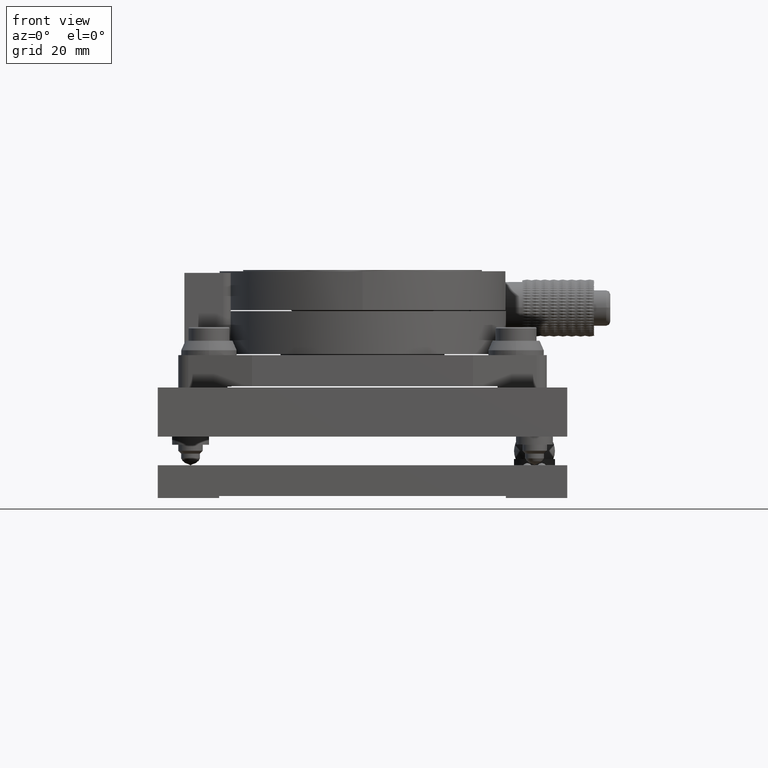
[diagram: clean part render]
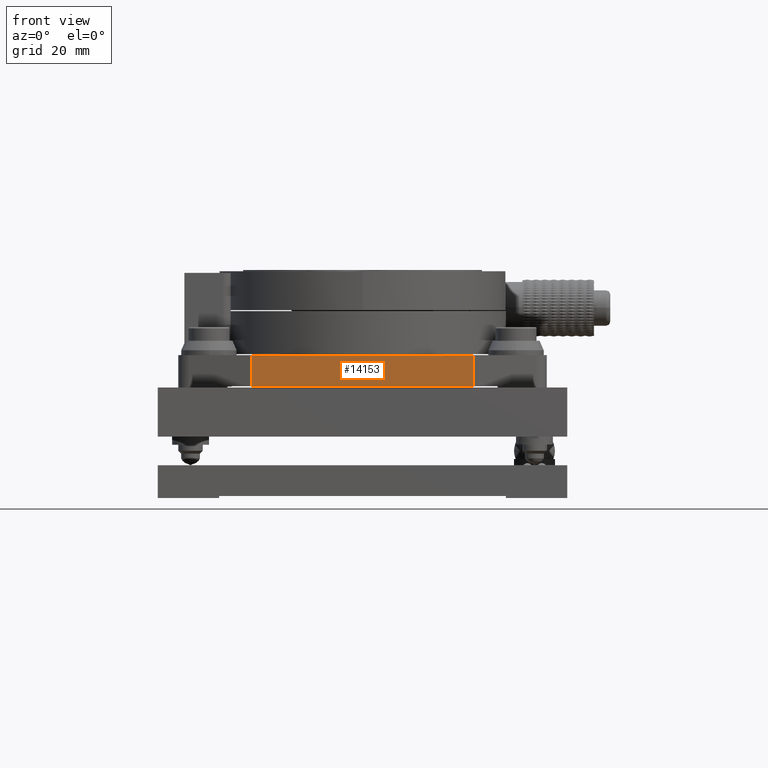
[diagram: same view with one face highlighted and labeled with its STEP entity id]
A machine part, front view. The second image highlights one B-rep face of the part: STEP entity #14153.
In plain terms, the highlighted planar face has unit normal (0, -1, 0).
Its self-contained STEP definition (entity closure, byte-faithful):
#14153=ADVANCED_FACE('',(#20178),#110171,.T.);
#20178=FACE_OUTER_BOUND('',#26693,.T.);
#26693=EDGE_LOOP('',(#59004,#59005,#59006,#59007));
#59004=ORIENTED_EDGE('',*,*,#76864,.T.);
#59005=ORIENTED_EDGE('',*,*,#77101,.T.);
#59006=ORIENTED_EDGE('',*,*,#77102,.T.);
#59007=ORIENTED_EDGE('',*,*,#77098,.F.);
#76864=EDGE_CURVE('',#104962,#104961,#92395,.T.);
#77098=EDGE_CURVE('',#104962,#105127,#92518,.T.);
#77101=EDGE_CURVE('',#104961,#105128,#92521,.T.);
#77102=EDGE_CURVE('',#105128,#105127,#92522,.T.);
#92395=B_SPLINE_CURVE_WITH_KNOTS('',1,(#188968,#188969),.UNSPECIFIED.,.F.,
 .F.,(2,2),(-54.,0.),.UNSPECIFIED.);
#92518=B_SPLINE_CURVE_WITH_KNOTS('',1,(#189621,#189622),.UNSPECIFIED.,.F.,
 .F.,(2,2),(0.,7.6),.UNSPECIFIED.);
#92521=B_SPLINE_CURVE_WITH_KNOTS('',1,(#189627,#189628),.UNSPECIFIED.,.F.,
 .F.,(2,2),(0.,7.6),.UNSPECIFIED.);
#92522=B_SPLINE_CURVE_WITH_KNOTS('',1,(#189629,#189630),.UNSPECIFIED.,.F.,
 .F.,(2,2),(0.,54.),.UNSPECIFIED.);
#104961=VERTEX_POINT('',#188240);
#104962=VERTEX_POINT('',#188241);
#105127=VERTEX_POINT('',#188406);
#105128=VERTEX_POINT('',#188407);
#110171=PLANE('',#116021);
#116021=AXIS2_PLACEMENT_3D('',#188155,#121169,$);
#121169=DIRECTION('',(0.,-1.,0.));
#188155=CARTESIAN_POINT('',(27.2701054007326,-39.407715650322,26.4201011709705));
#188240=CARTESIAN_POINT('',(21.7501054007326,-39.4077156503219,27.3001011709705));
#188241=CARTESIAN_POINT('',(-32.2498945992674,-39.4077156503218,27.3001011709705));
#188406=CARTESIAN_POINT('',(-32.2498945992674,-39.4077156503218,34.9001011709705));
#188407=CARTESIAN_POINT('',(21.7501054007326,-39.4077156503219,34.9001011709705));
#188968=CARTESIAN_POINT('',(-32.2498945992674,-39.4077156503218,27.3001011709705));
#188969=CARTESIAN_POINT('',(21.7501054007326,-39.4077156503219,27.3001011709705));
#189621=CARTESIAN_POINT('',(-32.2498945992674,-39.4077156503218,27.3001011709705));
#189622=CARTESIAN_POINT('',(-32.2498945992674,-39.4077156503218,34.9001011709705));
#189627=CARTESIAN_POINT('',(21.7501054007326,-39.4077156503219,27.3001011709705));
#189628=CARTESIAN_POINT('',(21.7501054007326,-39.4077156503219,34.9001011709705));
#189629=CARTESIAN_POINT('',(21.7501054007326,-39.4077156503219,34.9001011709705));
#189630=CARTESIAN_POINT('',(-32.2498945992674,-39.4077156503218,34.9001011709705));